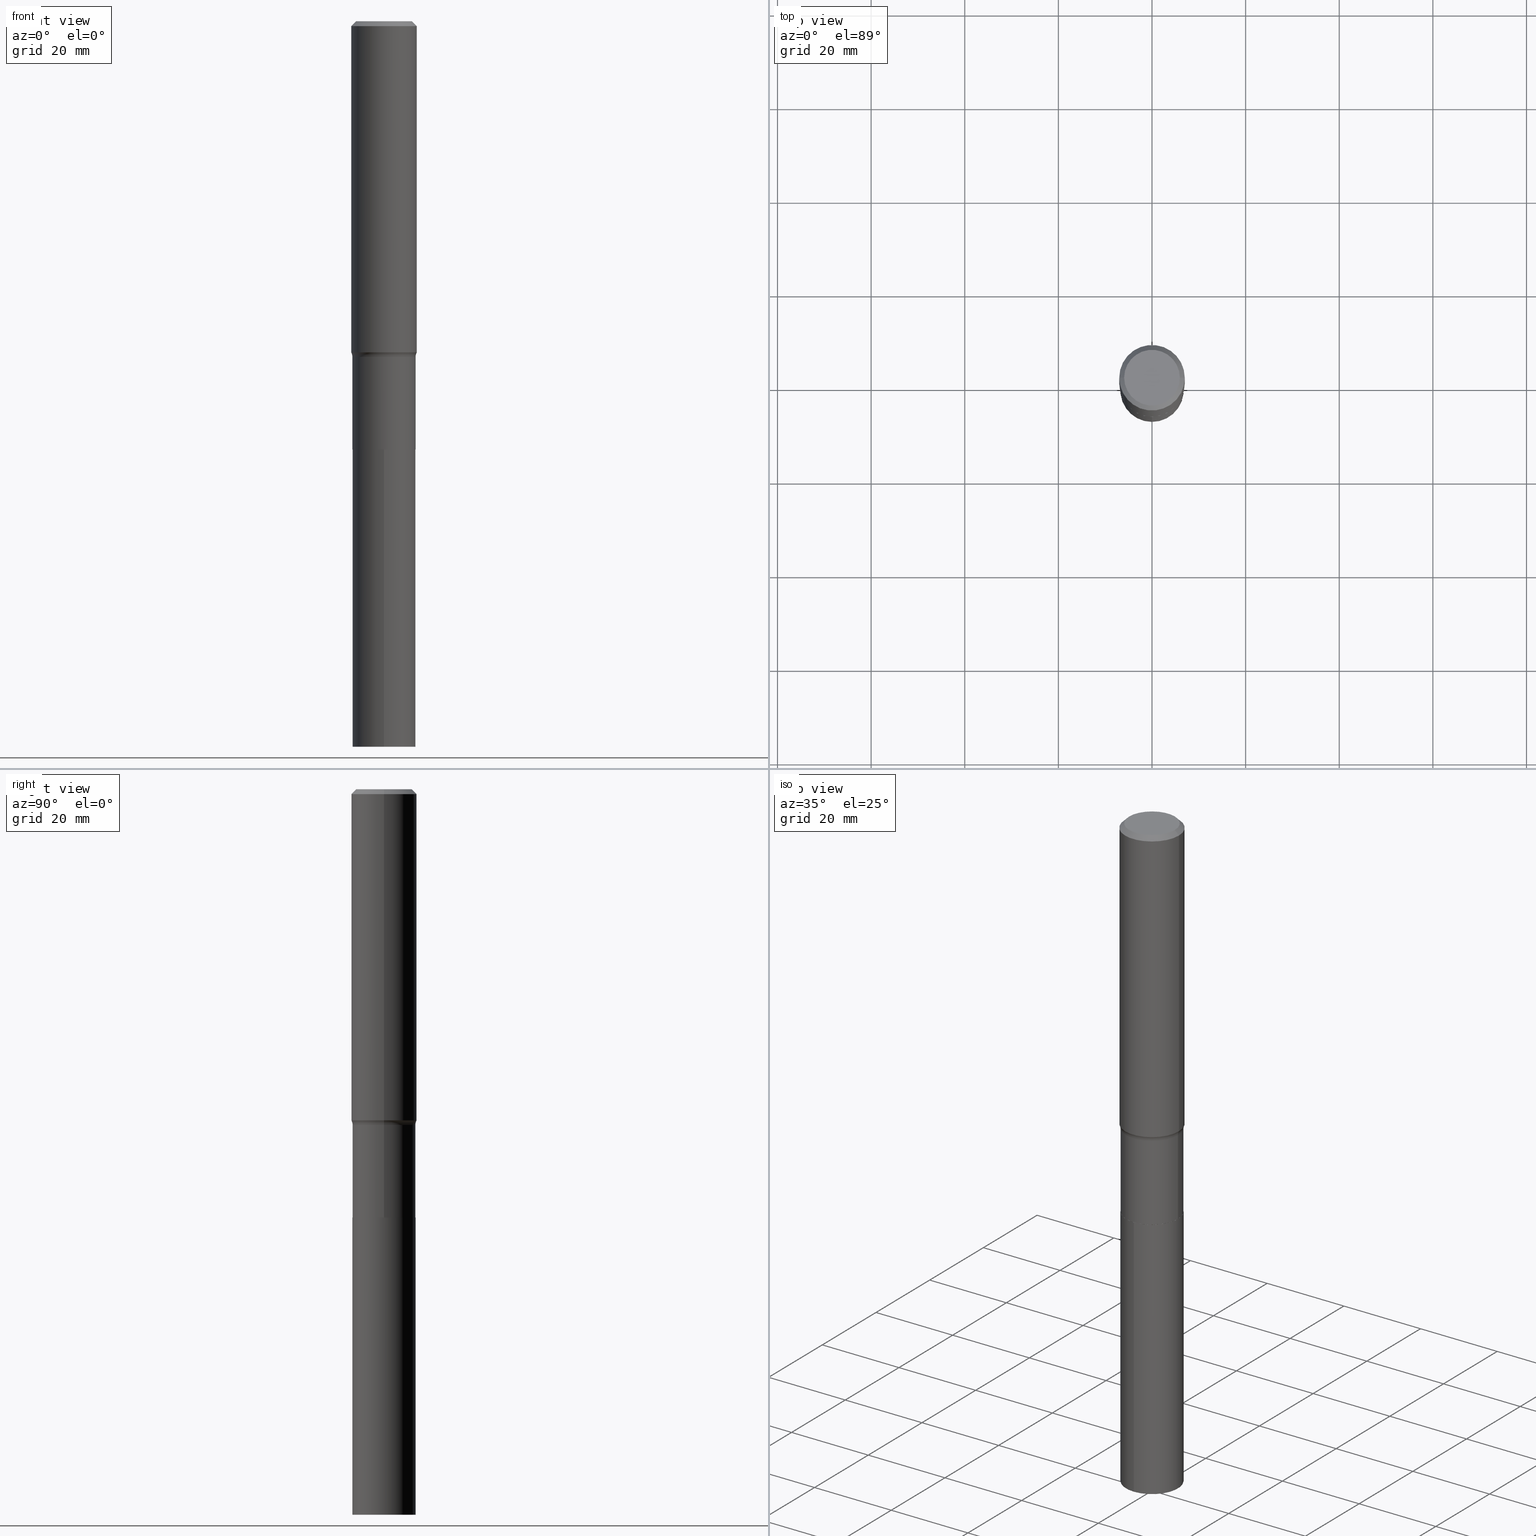
[diagram: canonical four-view strip — front | top / right | iso, engineering-drawing reading convention]
A machine part, canonical four-view strip (front | top / right | iso — engineering-drawing reading convention). The complete STEP part file that produces these views, byte-faithful:
ISO-10303-21;
HEADER;
FILE_DESCRIPTION (( 'STEP AP203' ),
    '1' );
FILE_NAME ('67912.STEP',
    '2024-04-19T17:03:45',
    ( '' ),
    ( '' ),
    'SwSTEP 2.0',
    'SolidWorks 2023',
    '' );
FILE_SCHEMA (( 'CONFIG_CONTROL_DESIGN' ));
ENDSEC;

DATA;
#1 = CARTESIAN_POINT ( 'NONE',  ( 6.905270268024969154E-29, -9.858895856491388163E-15, -2.823699999999999655 ) ) ;
#2 = ADVANCED_FACE ( 'NONE', ( #364 ), #408, .F. ) ;
#3 = DIRECTION ( 'NONE',  ( -2.445202752082162173E-29, 3.491862343461463945E-15, 1.000000000000000000 ) ) ;
#4 = DIRECTION ( 'NONE',  ( 1.000000000000000000, -6.982962677686266711E-15, 0.000000000000000000 ) ) ;
#5 = APPROVAL ( #10, 'UNSPECIFIED' ) ;
#6 = AXIS2_PLACEMENT_3D ( 'NONE', #388, #215, #426 ) ;
#7 = LOCAL_TIME ( 13, 3, 45.00000000000000000, #223 ) ;
#8 = LENGTH_MEASURE_WITH_UNIT ( LENGTH_MEASURE( 0.02539999999999999897 ), #335 );
#9 = ORIENTED_EDGE ( 'NONE', *, *, #432, .T. ) ;
#10 = APPROVAL_STATUS ( 'not_yet_approved' ) ;
#11 = DIRECTION ( 'NONE',  ( 0.000000000000000000, 0.000000000000000000, 1.000000000000000000 ) ) ;
#12 = CARTESIAN_POINT ( 'NONE',  ( 8.809556827401336523E-29, -1.257771237504854747E-14, -3.602399999999999824 ) ) ;
#13 = ORIENTED_EDGE ( 'NONE', *, *, #405, .F. ) ;
#14 = DIRECTION ( 'NONE',  ( -1.000000000000000000, 6.982962677686265922E-15, -4.876176775795935793E-29 ) ) ;
#15 = PERSON_AND_ORGANIZATION ( #316, #463 ) ;
#16 = DIRECTION ( 'NONE',  ( 2.445468806185136597E-29, -3.491481338843145583E-15, -1.000000000000000000 ) ) ;
#17 = VERTEX_POINT ( 'NONE', #302 ) ;
#18 = APPROVAL_STATUS ( 'not_yet_approved' ) ;
#19 = CARTESIAN_POINT ( 'NONE',  ( 8.809556827401336523E-29, -1.257771237504854747E-14, -3.602399999999999824 ) ) ;
#20 = ORIENTED_EDGE ( 'NONE', *, *, #181, .F. ) ;
#21 = CARTESIAN_POINT ( 'NONE',  ( 8.809556827401336523E-29, -1.257771237504854747E-14, -3.602399999999999824 ) ) ;
#22 = CIRCLE ( 'NONE', #47, 0.2756000000000004002 ) ;
#23 = CARTESIAN_POINT ( 'NONE',  ( -0.2756000000000001782, 1.958255779754837378E-15, -1.355658510874252848E-29 ) ) ;
#24 = FACE_OUTER_BOUND ( 'NONE', #33, .T. ) ;
#25 = ORIENTED_EDGE ( 'NONE', *, *, #264, .F. ) ;
#26 = PERSON_AND_ORGANIZATION_ROLE ( 'creator' ) ;
#27 = FACE_OUTER_BOUND ( 'NONE', #159, .T. ) ;
#28 = ORIENTED_EDGE ( 'NONE', *, *, #184, .F. ) ;
#29 = CARTESIAN_POINT ( 'NONE',  ( 0.3457499999999998352, -1.227325520230141358E-14, -2.823699999999999655 ) ) ;
#30 = APPROVAL ( #376, 'UNSPECIFIED' ) ;
#31 = TOROIDAL_SURFACE ( 'NONE', #150, 0.3457499999999998352, 0.07999999999999998779 ) ;
#32 = CARTESIAN_POINT ( 'NONE',  ( -0.2756000000000000116, -2.976224286966953364E-15, -0.04134000000000025848 ) ) ;
#33 = EDGE_LOOP ( 'NONE', ( #422, #300, #210, #153 ) ) ;
#34 = ADVANCED_FACE ( 'NONE', ( #296 ), #229, .T. ) ;
#35 = DIRECTION ( 'NONE',  ( 1.000000000000000000, -6.982962677686265133E-15, 4.876176775795935232E-29 ) ) ;
#36 = DIRECTION ( 'NONE',  ( -2.445468806185136597E-29, 3.491481338843145583E-15, 1.000000000000000000 ) ) ;
#37 = ORIENTED_EDGE ( 'NONE', *, *, #152, .F. ) ;
#38 = CARTESIAN_POINT ( 'NONE',  ( -0.2756000000000000116, 1.780166675422558965E-15, -0.04134000000000025848 ) ) ;
#39 = AXIS2_PLACEMENT_3D ( 'NONE', #204, #352, #345 ) ;
#40 = DIRECTION ( 'NONE',  ( -2.445468806185136597E-29, 3.491481338843145583E-15, 1.000000000000000000 ) ) ;
#41 = EDGE_CURVE ( 'NONE', #319, #88, #375, .T. ) ;
#42 = ORIENTED_EDGE ( 'NONE', *, *, #74, .T. ) ;
#43 = ORIENTED_EDGE ( 'NONE', *, *, #41, .T. ) ;
#44 =( CONVERSION_BASED_UNIT ( 'INCH', #8 ) LENGTH_UNIT ( ) NAMED_UNIT ( #346 ) );
#45 = FACE_OUTER_BOUND ( 'NONE', #387, .T. ) ;
#46 = CARTESIAN_POINT ( 'NONE',  ( -5.014852121625167883E-47, 7.159879756154482429E-33, 2.050671065172242981E-18 ) ) ;
#47 = AXIS2_PLACEMENT_3D ( 'NONE', #266, #290, #136 ) ;
#48 = PRODUCT_DEFINITION_FORMATION_WITH_SPECIFIED_SOURCE ( 'ANY', '', #425, .NOT_KNOWN. ) ;
#49 = ADVANCED_FACE ( 'NONE', ( #299 ), #269, .T. ) ;
#50 = COORDINATED_UNIVERSAL_TIME_OFFSET ( 5, 0, .BEHIND. ) ;
#51 = DIRECTION ( 'NONE',  ( -6.982962677686266711E-15, -1.000000000000000000, 4.111906669673397387E-15 ) ) ;
#52 = FACE_OUTER_BOUND ( 'NONE', #332, .T. ) ;
#53 = COORDINATED_UNIVERSAL_TIME_OFFSET ( 5, 0, .BEHIND. ) ;
#54 = DIRECTION ( 'NONE',  ( -6.982962677686266711E-15, -1.000000000000000000, 4.111906669673397387E-15 ) ) ;
#55 = CARTESIAN_POINT ( 'NONE',  ( 1.888267320282615635E-15, 0.2657499999999874407, -3.602400000000000713 ) ) ;
#56 = EDGE_LOOP ( 'NONE', ( #313, #192, #456, #126 ) ) ;
#57 = PERSON_AND_ORGANIZATION ( #316, #463 ) ;
#58 = CYLINDRICAL_SURFACE ( 'NONE', #361, 0.2657499999999999862 ) ;
#59 = EDGE_LOOP ( 'NONE', ( #20, #102, #310, #134 ) ) ;
#60 = EDGE_CURVE ( 'NONE', #439, #358, #217, .T. ) ;
#61 = ORIENTED_EDGE ( 'NONE', *, *, #222, .T. ) ;
#62 = CARTESIAN_POINT ( 'NONE',  ( 1.010956804476941872E-30, -1.443378385477765316E-16, -0.04134000000000025848 ) ) ;
#63 = ORIENTED_EDGE ( 'NONE', *, *, #260, .F. ) ;
#64 = CIRCLE ( 'NONE', #190, 0.07999999999999996003 ) ;
#65 = CIRCLE ( 'NONE', #77, 0.2657499999999999862 ) ;
#66 = VECTOR ( 'NONE', #379, 39.37007874015748143 ) ;
#67 = ORIENTED_EDGE ( 'NONE', *, *, #41, .F. ) ;
#68 = LOCAL_TIME ( 13, 3, 45.00000000000000000, #53 ) ;
#69 = DIRECTION ( 'NONE',  ( 1.000000000000000000, -6.982962677686267499E-15, 4.876157962347795834E-29 ) ) ;
#70 = ADVANCED_FACE ( 'NONE', ( #236 ), #31, .F. ) ;
#71 = CC_DESIGN_PERSON_AND_ORGANIZATION_ASSIGNMENT ( #166, #309, ( #48 ) ) ;
#72 = DIRECTION ( 'NONE',  ( 1.000000000000000000, -6.982962677686265133E-15, 4.876176775795935232E-29 ) ) ;
#73 = DIRECTION ( 'NONE',  ( 1.000000000000000000, -6.982962677686262766E-15, 0.000000000000000000 ) ) ;
#74 = EDGE_CURVE ( 'NONE', #444, #88, #297, .T. ) ;
#75 = CIRCLE ( 'NONE', #295, 0.2657499999999999862 ) ;
#76 = PERSON_AND_ORGANIZATION ( #316, #463 ) ;
#77 = AXIS2_PLACEMENT_3D ( 'NONE', #12, #199, #87 ) ;
#78 = EDGE_CURVE ( 'NONE', #358, #88, #168, .T. ) ;
#79 = CARTESIAN_POINT ( 'NONE',  ( 0.2657499999999999862, -1.855722331595124952E-15, 1.295843978167769732E-29 ) ) ;
#80 = MANIFOLD_SOLID_BREP ( 'Body-Move/Copy2[2]', #116 ) ;
#81 = AXIS2_PLACEMENT_3D ( 'NONE', #209, #175, #457 ) ;
#82 =( GEOMETRIC_REPRESENTATION_CONTEXT ( 3 ) GLOBAL_UNCERTAINTY_ASSIGNED_CONTEXT ( ( #148 ) ) GLOBAL_UNIT_ASSIGNED_CONTEXT ( ( #44, #232, #154 ) ) REPRESENTATION_CONTEXT ( 'NONE', 'WORKASPACE' ) );
#83 = PRODUCT_DEFINITION ( 'UNKNOWN', '', #48, #357 ) ;
#84 = ORIENTED_EDGE ( 'NONE', *, *, #152, .T. ) ;
#85 = PERSON_AND_ORGANIZATION ( #316, #463 ) ;
#86 = ORIENTED_EDGE ( 'NONE', *, *, #464, .T. ) ;
#87 = DIRECTION ( 'NONE',  ( -6.982962677686266711E-15, -1.000000000000000000, 4.111906669673397387E-15 ) ) ;
#88 = VERTEX_POINT ( 'NONE', #139 ) ;
#89 = CARTESIAN_POINT ( 'NONE',  ( 0.2652499999999999858, -1.442994322530482981E-14, -3.602399999999999824 ) ) ;
#90 = VERTEX_POINT ( 'NONE', #392 ) ;
#91 = DATE_AND_TIME ( #281, #68 ) ;
#92 = DIRECTION ( 'NONE',  ( -2.445468806185136597E-29, 3.491481338843145583E-15, 1.000000000000000000 ) ) ;
#93 = ADVANCED_FACE ( 'NONE', ( #169 ), #130, .T. ) ;
#94 = ORIENTED_EDGE ( 'NONE', *, *, #105, .T. ) ;
#95 = DIRECTION ( 'NONE',  ( -6.982962677686265922E-15, -1.000000000000000000, 3.491862343461464340E-15 ) ) ;
#96 = CIRCLE ( 'NONE', #39, 0.2756000000000000116 ) ;
#97 = ORIENTED_EDGE ( 'NONE', *, *, #260, .T. ) ;
#98 = SHAPE_DEFINITION_REPRESENTATION ( #142, #420 ) ;
#99 = CARTESIAN_POINT ( 'NONE',  ( -1.855722331595036994E-15, -0.2657500000000125318, -3.602399999999998492 ) ) ;
#100 = ORIENTED_EDGE ( 'NONE', *, *, #60, .T. ) ;
#101 = CARTESIAN_POINT ( 'NONE',  ( 8.808334092998241479E-29, -1.257596663437912518E-14, -3.601899999999999658 ) ) ;
#102 = ORIENTED_EDGE ( 'NONE', *, *, #197, .T. ) ;
#103 = ORIENTED_EDGE ( 'NONE', *, *, #228, .T. ) ;
#104 = DIRECTION ( 'NONE',  ( -2.445202752082161893E-29, 3.491862343461464340E-15, 1.000000000000000000 ) ) ;
#105 = EDGE_CURVE ( 'NONE', #358, #439, #288, .T. ) ;
#106 = EDGE_LOOP ( 'NONE', ( #441, #161, #176, #322 ) ) ;
#107 = EDGE_LOOP ( 'NONE', ( #267, #97, #84, #406 ) ) ;
#108 = FACE_OUTER_BOUND ( 'NONE', #380, .T. ) ;
#109 = LINE ( 'NONE', #396, #314 ) ;
#110 = AXIS2_PLACEMENT_3D ( 'NONE', #362, #36, #69 ) ;
#111 = LOCAL_TIME ( 13, 3, 45.00000000000000000, #344 ) ;
#112 = DIRECTION ( 'NONE',  ( 1.000000000000000000, -6.982962677686267499E-15, 0.000000000000000000 ) ) ;
#113 = DIRECTION ( 'NONE',  ( 0.7071067811865452413, -7.319954787623248157E-15, -0.7071067811865497932 ) ) ;
#114 = VERTEX_POINT ( 'NONE', #89 ) ;
#115 = ORIENTED_EDGE ( 'NONE', *, *, #363, .T. ) ;
#116 = CLOSED_SHELL ( 'NONE', ( #93, #194, #293, #2, #436, #49, #70, #34, #368, #461, #273, #446 ) ) ;
#117 = DIRECTION ( 'NONE',  ( 1.000000000000000000, -6.982962677686265922E-15, 4.883557194083112340E-29 ) ) ;
#118 = LOCAL_TIME ( 13, 3, 45.00000000000000000, #50 ) ;
#119 = DIRECTION ( 'NONE',  ( -2.445468806185136597E-29, 3.491481338843145583E-15, 1.000000000000000000 ) ) ;
#120 = EDGE_LOOP ( 'NONE', ( #213, #424, #287, #164 ) ) ;
#121 = MECHANICAL_CONTEXT ( 'NONE', #147, 'mechanical' ) ;
#122 = DIRECTION ( 'NONE',  ( 1.000000000000000000, -6.982962677686265922E-15, 4.883557194083112340E-29 ) ) ;
#123 = VECTOR ( 'NONE', #104, 39.37007874015748143 ) ;
#124 = EDGE_CURVE ( 'NONE', #114, #305, #200, .T. ) ;
#125 = CARTESIAN_POINT ( 'NONE',  ( 8.809556827401336523E-29, -1.257771237504854747E-14, -3.602399999999999824 ) ) ;
#126 = ORIENTED_EDGE ( 'NONE', *, *, #363, .F. ) ;
#127 = CALENDAR_DATE ( 2024, 19, 4 ) ;
#128 = DIRECTION ( 'NONE',  ( -2.445202752082162173E-29, 3.491862343461463945E-15, 1.000000000000000000 ) ) ;
#129 = AXIS2_PLACEMENT_3D ( 'NONE', #417, #131, #95 ) ;
#130 = CONICAL_SURFACE ( 'NONE', #418, 0.2652499999999999858, 0.7853981633973118326 ) ;
#131 = DIRECTION ( 'NONE',  ( -2.445202752082161613E-29, 3.491862343461464340E-15, 1.000000000000000000 ) ) ;
#132 = VERTEX_POINT ( 'NONE', #55 ) ;
#133 = ORIENTED_EDGE ( 'NONE', *, *, #373, .F. ) ;
#134 = ORIENTED_EDGE ( 'NONE', *, *, #105, .F. ) ;
#135 = APPROVAL_ROLE ( '' ) ;
#136 = DIRECTION ( 'NONE',  ( 1.000000000000000000, -6.982962677686270655E-15, 0.000000000000000000 ) ) ;
#137 = APPROVAL_ROLE ( '' ) ;
#138 = ORIENTED_EDGE ( 'NONE', *, *, #124, .F. ) ;
#139 = CARTESIAN_POINT ( 'NONE',  ( -0.2657499999999998752, -9.329163925152790920E-15, -2.823699999999999655 ) ) ;
#140 = PERSON_AND_ORGANIZATION ( #316, #463 ) ;
#141 = DIRECTION ( 'NONE',  ( 2.445468806185136597E-29, -3.491481338843145583E-15, -1.000000000000000000 ) ) ;
#142 = PRODUCT_DEFINITION_SHAPE ( 'NONE', 'NONE',  #83 ) ;
#143 = VECTOR ( 'NONE', #458, 39.37007874015748143 ) ;
#144 = CONICAL_SURFACE ( 'NONE', #385, 0.2756000000000000116, 0.7853981633974450594 ) ;
#145 = DIRECTION ( 'NONE',  ( -2.445468806185136877E-29, 3.491481338843145188E-15, 1.000000000000000000 ) ) ;
#146 = DIRECTION ( 'NONE',  ( -2.445202752082162173E-29, 3.491862343461463945E-15, 1.000000000000000000 ) ) ;
#147 = APPLICATION_CONTEXT ( 'configuration controlled 3d designs of mechanical parts and assemblies' ) ;
#148 = UNCERTAINTY_MEASURE_WITH_UNIT (LENGTH_MEASURE( 1.000000000000000082E-05 ), #44, 'distance_accuracy_value', 'NONE');
#149 = DIRECTION ( 'NONE',  ( -6.982962677686266711E-15, -1.000000000000000000, 4.111906669673397387E-15 ) ) ;
#150 = AXIS2_PLACEMENT_3D ( 'NONE', #304, #443, #122 ) ;
#151 = DIRECTION ( 'NONE',  ( -1.000000000000000000, 7.105427357601001859E-15, 0.000000000000000000 ) ) ;
#152 = EDGE_CURVE ( 'NONE', #451, #355, #450, .T. ) ;
#153 = ORIENTED_EDGE ( 'NONE', *, *, #464, .F. ) ;
#154 =( NAMED_UNIT ( * ) SI_UNIT ( $, .STERADIAN. ) SOLID_ANGLE_UNIT ( ) );
#155 = DIRECTION ( 'NONE',  ( 1.000000000000000000, 0.000000000000000000, 0.000000000000000000 ) ) ;
#156 = CARTESIAN_POINT ( 'NONE',  ( -0.3457499999999998352, -7.402194347600843335E-15, -2.823699999999999655 ) ) ;
#157 = ORIENTED_EDGE ( 'NONE', *, *, #389, .T. ) ;
#158 = DIRECTION ( 'NONE',  ( 7.105427357601001859E-15, 1.000000000000000000, -3.491481338843145583E-15 ) ) ;
#159 = EDGE_LOOP ( 'NONE', ( #280, #13, #86, #157 ) ) ;
#160 = AXIS2_PLACEMENT_3D ( 'NONE', #272, #119, #72 ) ;
#161 = ORIENTED_EDGE ( 'NONE', *, *, #181, .T. ) ;
#162 = CIRCLE ( 'NONE', #219, 0.2657499999999999862 ) ;
#163 = DIRECTION ( 'NONE',  ( -2.445468806185136597E-29, 3.491481338843145583E-15, 1.000000000000000000 ) ) ;
#164 = ORIENTED_EDGE ( 'NONE', *, *, #189, .F. ) ;
#165 = DIRECTION ( 'NONE',  ( -0.7071067811865452413, 2.468850131082233000E-15, -0.7071067811865497932 ) ) ;
#166 = PERSON_AND_ORGANIZATION ( #316, #463 ) ;
#167 = CC_DESIGN_PERSON_AND_ORGANIZATION_ASSIGNMENT ( #15, #26, ( #48 ) ) ;
#168 = LINE ( 'NONE', #311, #403 ) ;
#169 = FACE_OUTER_BOUND ( 'NONE', #106, .T. ) ;
#170 = DIRECTION ( 'NONE',  ( 1.000000000000000000, -6.982962677686265922E-15, 4.876176775795935793E-29 ) ) ;
#171 = CC_DESIGN_SECURITY_CLASSIFICATION ( #186, ( #48 ) ) ;
#172 = ADVANCED_FACE ( 'NONE', ( #52 ), #354, .F. ) ;
#173 = CALENDAR_DATE ( 2024, 19, 4 ) ;
#174 = DIRECTION ( 'NONE',  ( 1.000000000000000000, -6.982962677686267499E-15, 4.876176775795935793E-29 ) ) ;
#175 = DIRECTION ( 'NONE',  ( -2.445468806185136597E-29, 3.491481338843145583E-15, 1.000000000000000000 ) ) ;
#176 = ORIENTED_EDGE ( 'NONE', *, *, #60, .F. ) ;
#177 = CARTESIAN_POINT ( 'NONE',  ( 1.010956804476941872E-30, -1.443378385477765316E-16, -0.04134000000000025848 ) ) ;
#178 = DIRECTION ( 'NONE',  ( 1.000000000000000000, -6.982962677686265922E-15, 0.000000000000000000 ) ) ;
#179 = ORIENTED_EDGE ( 'NONE', *, *, #78, .F. ) ;
#180 = CIRCLE ( 'NONE', #421, 0.2342600000000000238 ) ;
#181 = EDGE_CURVE ( 'NONE', #305, #358, #205, .T. ) ;
#182 = EDGE_LOOP ( 'NONE', ( #138, #351 ) ) ;
#183 = FACE_OUTER_BOUND ( 'NONE', #59, .T. ) ;
#184 = EDGE_CURVE ( 'NONE', #451, #319, #64, .T. ) ;
#185 = CIRCLE ( 'NONE', #81, 0.2657499999999998752 ) ;
#186 = SECURITY_CLASSIFICATION ( '', '', #448 ) ;
#187 = DIRECTION ( 'NONE',  ( 6.982962677686265922E-15, 1.000000000000000000, -3.491862343461464340E-15 ) ) ;
#188 = FACE_OUTER_BOUND ( 'NONE', #218, .T. ) ;
#189 = EDGE_CURVE ( 'NONE', #283, #263, #246, .T. ) ;
#190 = AXIS2_PLACEMENT_3D ( 'NONE', #29, #326, #460 ) ;
#191 = AXIS2_PLACEMENT_3D ( 'NONE', #46, #401, #14 ) ;
#192 = ORIENTED_EDGE ( 'NONE', *, *, #264, .T. ) ;
#193 = CC_DESIGN_APPROVAL ( #5, ( #83 ) ) ;
#194 = ADVANCED_FACE ( 'NONE', ( #24 ), #324, .T. ) ;
#195 = CARTESIAN_POINT ( 'NONE',  ( 0.000000000000000000, 0.000000000000000000, 0.000000000000000000 ) ) ;
#196 = EDGE_LOOP ( 'NONE', ( #100, #250, #67, #390 ) ) ;
#197 = EDGE_CURVE ( 'NONE', #305, #114, #207, .T. ) ;
#198 = DATE_TIME_ROLE ( 'creation_date' ) ;
#199 = DIRECTION ( 'NONE',  ( -2.445202752082162173E-29, 3.491862343461463945E-15, 1.000000000000000000 ) ) ;
#200 = CIRCLE ( 'NONE', #6, 0.2652499999999999858 ) ;
#201 = CIRCLE ( 'NONE', #371, 0.2756000000000000116 ) ;
#202 = DATE_AND_TIME ( #173, #118 ) ;
#203 = PERSON_AND_ORGANIZATION_ROLE ( 'creator' ) ;
#204 = CARTESIAN_POINT ( 'NONE',  ( 1.010956804476941872E-30, -1.443378385477765316E-16, -0.04134000000000025848 ) ) ;
#205 = LINE ( 'NONE', #255, #66 ) ;
#206 = LINE ( 'NONE', #79, #445 ) ;
#207 = CIRCLE ( 'NONE', #242, 0.2652499999999999858 ) ;
#208 = AXIS2_PLACEMENT_3D ( 'NONE', #254, #391, #327 ) ;
#209 = CARTESIAN_POINT ( 'NONE',  ( 6.905270268024969154E-29, -9.858895856491388163E-15, -2.823699999999999655 ) ) ;
#210 = ORIENTED_EDGE ( 'NONE', *, *, #338, .T. ) ;
#211 = COORDINATED_UNIVERSAL_TIME_OFFSET ( 5, 0, .BEHIND. ) ;
#212 = DIRECTION ( 'NONE',  ( -2.445202752082162173E-29, 3.491862343461463945E-15, 1.000000000000000000 ) ) ;
#213 = ORIENTED_EDGE ( 'NONE', *, *, #449, .T. ) ;
#214 = ORIENTED_EDGE ( 'NONE', *, *, #338, .F. ) ;
#215 = DIRECTION ( 'NONE',  ( -2.445468806185136597E-29, 3.491481338843145583E-15, 1.000000000000000000 ) ) ;
#216 = EDGE_LOOP ( 'NONE', ( #63, #42, #61, #28 ) ) ;
#217 = CIRCLE ( 'NONE', #348, 0.2657500000000000417 ) ;
#218 = EDGE_LOOP ( 'NONE', ( #9, #115 ) ) ;
#219 = AXIS2_PLACEMENT_3D ( 'NONE', #291, #146, #149 ) ;
#220 = APPROVAL ( #18, 'UNSPECIFIED' ) ;
#221 = CARTESIAN_POINT ( 'NONE',  ( 8.809556827401336523E-29, -1.257771237504854747E-14, -3.602399999999999824 ) ) ;
#222 = EDGE_CURVE ( 'NONE', #88, #319, #185, .T. ) ;
#223 = COORDINATED_UNIVERSAL_TIME_OFFSET ( 5, 0, .BEHIND. ) ;
#224 = EDGE_CURVE ( 'NONE', #17, #355, #109, .T. ) ;
#225 = AXIS2_PLACEMENT_3D ( 'NONE', #156, #158, #151 ) ;
#226 = AXIS2_PLACEMENT_3D ( 'NONE', #227, #294, #35 ) ;
#227 = CARTESIAN_POINT ( 'NONE',  ( 0.000000000000000000, 0.000000000000000000, 0.000000000000000000 ) ) ;
#228 = EDGE_CURVE ( 'NONE', #17, #256, #306, .T. ) ;
#229 = CYLINDRICAL_SURFACE ( 'NONE', #330, 0.2756000000000001782 ) ;
#230 = CARTESIAN_POINT ( 'NONE',  ( 0.2657500000000000417, -1.443168896597424895E-14, -3.601899999999999658 ) ) ;
#231 = CARTESIAN_POINT ( 'NONE',  ( 8.808334092998241479E-29, -1.257596663437912518E-14, -3.601899999999999658 ) ) ;
#232 =( NAMED_UNIT ( * ) PLANE_ANGLE_UNIT ( ) SI_UNIT ( $, .RADIAN. ) );
#233 = VECTOR ( 'NONE', #244, 39.37007874015748143 ) ;
#234 = PRODUCT_RELATED_PRODUCT_CATEGORY ( 'detail', '', ( #425 ) ) ;
#235 = VECTOR ( 'NONE', #279, 39.37007874015748143 ) ;
#236 = FACE_OUTER_BOUND ( 'NONE', #285, .T. ) ;
#237 = PERSON_AND_ORGANIZATION_ROLE ( 'design_owner' ) ;
#238 = DIRECTION ( 'NONE',  ( -2.445468806185136597E-29, 3.491481338843145583E-15, 1.000000000000000000 ) ) ;
#239 = ADVANCED_FACE ( 'NONE', ( #188 ), #334, .F. ) ;
#240 = DATE_AND_TIME ( #374, #271 ) ;
#241 = DIRECTION ( 'NONE',  ( 1.000000000000000000, -6.982962677686270655E-15, 0.000000000000000000 ) ) ;
#242 = AXIS2_PLACEMENT_3D ( 'NONE', #21, #383, #317 ) ;
#243 = CARTESIAN_POINT ( 'NONE',  ( 0.000000000000000000, 0.000000000000000000, 0.000000000000000000 ) ) ;
#244 = DIRECTION ( 'NONE',  ( -2.445468806185136877E-29, 3.491481338843145188E-15, 1.000000000000000000 ) ) ;
#245 = LINE ( 'NONE', #282, #143 ) ;
#246 = LINE ( 'NONE', #318, #123 ) ;
#247 = ORIENTED_EDGE ( 'NONE', *, *, #303, .T. ) ;
#248 = APPROVAL_DATE_TIME ( #91, #220 ) ;
#249 = DIRECTION ( 'NONE',  ( -2.445468806185136877E-29, 3.491481338843145188E-15, 1.000000000000000000 ) ) ;
#250 = ORIENTED_EDGE ( 'NONE', *, *, #78, .T. ) ;
#251 = AXIS2_PLACEMENT_3D ( 'NONE', #243, #92, #174 ) ;
#252 = DIRECTION ( 'NONE',  ( -2.438088387897960049E-29, 3.491481338843145188E-15, 1.000000000000000000 ) ) ;
#253 = DIRECTION ( 'NONE',  ( -2.445468806185136597E-29, 3.491481338843145583E-15, 1.000000000000000000 ) ) ;
#254 = CARTESIAN_POINT ( 'NONE',  ( 8.809556827401336523E-29, -1.257771237504854747E-14, -3.602399999999999824 ) ) ;
#255 = CARTESIAN_POINT ( 'NONE',  ( -0.2652499999999999858, -1.069299776844488341E-14, -3.602399999999999824 ) ) ;
#256 = VERTEX_POINT ( 'NONE', #465 ) ;
#257 = MANIFOLD_SOLID_BREP ( 'Body-Move/Copy2[1]', #265 ) ;
#258 = FACE_OUTER_BOUND ( 'NONE', #196, .T. ) ;
#259 = APPROVAL_PERSON_ORGANIZATION ( #85, #220, #411 ) ;
#260 = EDGE_CURVE ( 'NONE', #444, #451, #22, .T. ) ;
#261 = CARTESIAN_POINT ( 'NONE',  ( -1.002970424325033577E-46, 1.431975951230896486E-32, 4.101342130344485961E-18 ) ) ;
#262 = CARTESIAN_POINT ( 'NONE',  ( 1.492256370760674490E-28, -2.130736823370221108E-14, -6.102400000000001157 ) ) ;
#263 = VERTEX_POINT ( 'NONE', #99 ) ;
#264 = EDGE_CURVE ( 'NONE', #90, #283, #75, .T. ) ;
#265 = CLOSED_SHELL ( 'NONE', ( #323, #172, #423, #239 ) ) ;
#266 = CARTESIAN_POINT ( 'NONE',  ( 6.811223708839815115E-29, -9.724622294895805890E-15, -2.785242523483721477 ) ) ;
#267 = ORIENTED_EDGE ( 'NONE', *, *, #303, .F. ) ;
#268 = EDGE_CURVE ( 'NONE', #114, #439, #245, .T. ) ;
#269 = CYLINDRICAL_SURFACE ( 'NONE', #160, 0.2657499999999999862 ) ;
#270 = AXIS2_PLACEMENT_3D ( 'NONE', #125, #252, #170 ) ;
#271 = LOCAL_TIME ( 13, 3, 45.00000000000000000, #211 ) ;
#272 = CARTESIAN_POINT ( 'NONE',  ( 0.000000000000000000, 0.000000000000000000, 0.000000000000000000 ) ) ;
#273 = ADVANCED_FACE ( 'NONE', ( #419 ), #275, .F. ) ;
#274 = DATE_AND_TIME ( #127, #111 ) ;
#275 = PLANE ( 'NONE',  #270 ) ;
#276 = APPLICATION_CONTEXT ( 'configuration controlled 3d designs of mechanical parts and assemblies' ) ;
#277 = ORIENTED_EDGE ( 'NONE', *, *, #320, .T. ) ;
#278 = APPROVAL_DATE_TIME ( #365, #5 ) ;
#279 = DIRECTION ( 'NONE',  ( -2.445202752082161893E-29, 3.491862343461464340E-15, 1.000000000000000000 ) ) ;
#280 = ORIENTED_EDGE ( 'NONE', *, *, #224, .F. ) ;
#281 = CALENDAR_DATE ( 2024, 19, 4 ) ;
#282 = CARTESIAN_POINT ( 'NONE',  ( 0.2652499999999999858, -1.442994322530482981E-14, -3.602399999999999824 ) ) ;
#283 = VERTEX_POINT ( 'NONE', #407 ) ;
#284 = CARTESIAN_POINT ( 'NONE',  ( 8.809556827401336523E-29, -1.257771237504854747E-14, -3.602399999999999824 ) ) ;
#285 = EDGE_LOOP ( 'NONE', ( #328, #133, #416, #43 ) ) ;
#286 = DIRECTION ( 'NONE',  ( -1.000000000000000000, 6.982962677686267499E-15, 0.000000000000000000 ) ) ;
#287 = ORIENTED_EDGE ( 'NONE', *, *, #432, .F. ) ;
#288 = CIRCLE ( 'NONE', #336, 0.2657500000000000417 ) ;
#289 = VECTOR ( 'NONE', #165, 39.37007874015748143 ) ;
#290 = DIRECTION ( 'NONE',  ( -2.445468806185136597E-29, 3.491481338843145583E-15, 1.000000000000000000 ) ) ;
#291 = CARTESIAN_POINT ( 'NONE',  ( 8.809556827401336523E-29, -1.257771237504854747E-14, -3.602399999999999824 ) ) ;
#292 = CARTESIAN_POINT ( 'NONE',  ( 0.2756000000000004002, -1.164912680886614558E-14, -2.785242523483721477 ) ) ;
#293 = ADVANCED_FACE ( 'NONE', ( #45 ), #410, .T. ) ;
#294 = DIRECTION ( 'NONE',  ( -2.445468806185136597E-29, 3.491481338843145583E-15, 1.000000000000000000 ) ) ;
#295 = AXIS2_PLACEMENT_3D ( 'NONE', #415, #128, #54 ) ;
#296 = FACE_OUTER_BOUND ( 'NONE', #107, .T. ) ;
#297 = CIRCLE ( 'NONE', #225, 0.07999999999999996003 ) ;
#298 = CIRCLE ( 'NONE', #349, 0.2657499999999999862 ) ;
#299 = FACE_OUTER_BOUND ( 'NONE', #386, .T. ) ;
#300 = ORIENTED_EDGE ( 'NONE', *, *, #224, .T. ) ;
#301 = CC_DESIGN_PERSON_AND_ORGANIZATION_ASSIGNMENT ( #414, #381, ( #186 ) ) ;
#302 = CARTESIAN_POINT ( 'NONE',  ( 0.2342600000000000238, -1.821115673845785155E-15, 4.101342130356573868E-18 ) ) ;
#303 = EDGE_CURVE ( 'NONE', #444, #393, #382, .T. ) ;
#304 = CARTESIAN_POINT ( 'NONE',  ( 6.905270268024969154E-29, -9.858895856491388163E-15, -2.823699999999999655 ) ) ;
#305 = VERTEX_POINT ( 'NONE', #321 ) ;
#306 = CIRCLE ( 'NONE', #110, 0.2342600000000000238 ) ;
#307 = CC_DESIGN_APPROVAL ( #30, ( #48 ) ) ;
#308 = CARTESIAN_POINT ( 'NONE',  ( 0.2756000000000000116, -2.068842352518111732E-15, -0.04134000000000025848 ) ) ;
#309 = PERSON_AND_ORGANIZATION_ROLE ( 'design_supplier' ) ;
#310 = ORIENTED_EDGE ( 'NONE', *, *, #268, .T. ) ;
#311 = CARTESIAN_POINT ( 'NONE',  ( -0.2657499999999999862, 1.888267320282466146E-15, -1.307207000235240949E-29 ) ) ;
#312 = DIRECTION ( 'NONE',  ( -2.445468806185136597E-29, 3.491481338843145583E-15, 1.000000000000000000 ) ) ;
#313 = ORIENTED_EDGE ( 'NONE', *, *, #341, .F. ) ;
#314 = VECTOR ( 'NONE', #113, 39.37007874015748143 ) ;
#315 = LINE ( 'NONE', #454, #235 ) ;
#316 = PERSON ( 'UNSPECIFIED', 'UNSPECIFIED', 'UNSPECIFIED', ('UNSPECIFIED'), ('UNSPECIFIED'), ('UNSPECIFIED') ) ;
#317 = DIRECTION ( 'NONE',  ( 1.000000000000000000, -6.982962677686265922E-15, 0.000000000000000000 ) ) ;
#318 = CARTESIAN_POINT ( 'NONE',  ( -1.855722331595036994E-15, -0.2657500000000125318, -3.602399999999998492 ) ) ;
#319 = VERTEX_POINT ( 'NONE', #455 ) ;
#320 = EDGE_CURVE ( 'NONE', #439, #319, #206, .T. ) ;
#321 = CARTESIAN_POINT ( 'NONE',  ( -0.2652499999999999858, -1.069034854127076984E-14, -3.602399999999999824 ) ) ;
#322 = ORIENTED_EDGE ( 'NONE', *, *, #268, .F. ) ;
#323 = ADVANCED_FACE ( 'NONE', ( #384 ), #58, .T. ) ;
#324 = CONICAL_SURFACE ( 'NONE', #462, 0.2756000000000000116, 0.7853981633974450594 ) ;
#325 = APPROVAL_PERSON_ORGANIZATION ( #57, #30, #135 ) ;
#326 = DIRECTION ( 'NONE',  ( -6.982962677686266711E-15, -1.000000000000000000, 3.491481338843145583E-15 ) ) ;
#327 = DIRECTION ( 'NONE',  ( -6.982962677686266711E-15, -1.000000000000000000, 4.111906669673397387E-15 ) ) ;
#328 = ORIENTED_EDGE ( 'NONE', *, *, #74, .F. ) ;
#329 = CYLINDRICAL_SURFACE ( 'NONE', #208, 0.2657499999999999862 ) ;
#330 = AXIS2_PLACEMENT_3D ( 'NONE', #466, #400, #366 ) ;
#331 = CALENDAR_DATE ( 2024, 19, 4 ) ;
#332 = EDGE_LOOP ( 'NONE', ( #353, #25 ) ) ;
#333 = DIRECTION ( 'NONE',  ( -2.445468806185136597E-29, 3.491481338843145583E-15, 1.000000000000000000 ) ) ;
#334 = PLANE ( 'NONE',  #370 ) ;
#335 =( LENGTH_UNIT ( ) NAMED_UNIT ( * ) SI_UNIT ( $, .METRE. ) );
#336 = AXIS2_PLACEMENT_3D ( 'NONE', #101, #253, #413 ) ;
#337 = PLANE ( 'NONE',  #191 ) ;
#338 = EDGE_CURVE ( 'NONE', #355, #393, #96, .T. ) ;
#339 = PERSON_AND_ORGANIZATION ( #316, #463 ) ;
#340 = AXIS2_PLACEMENT_3D ( 'NONE', #1, #238, #117 ) ;
#341 = EDGE_CURVE ( 'NONE', #90, #132, #315, .T. ) ;
#342 = CARTESIAN_POINT ( 'NONE',  ( 6.811223708839815115E-29, -9.724622294895805890E-15, -2.785242523483721477 ) ) ;
#343 = APPROVAL_DATE_TIME ( #202, #30 ) ;
#344 = COORDINATED_UNIVERSAL_TIME_OFFSET ( 5, 0, .BEHIND. ) ;
#345 = DIRECTION ( 'NONE',  ( 1.000000000000000000, -6.982962677686267499E-15, 0.000000000000000000 ) ) ;
#346 = DIMENSIONAL_EXPONENTS ( 1.000000000000000000, 0.000000000000000000, 0.000000000000000000, 0.000000000000000000, 0.000000000000000000, 0.000000000000000000, 0.000000000000000000 ) ;
#347 = DIRECTION ( 'NONE',  ( -1.000000000000000000, 6.982962677686267499E-15, 0.000000000000000000 ) ) ;
#348 = AXIS2_PLACEMENT_3D ( 'NONE', #231, #402, #73 ) ;
#349 = AXIS2_PLACEMENT_3D ( 'NONE', #262, #3, #367 ) ;
#350 = CARTESIAN_POINT ( 'NONE',  ( 0.2756000000000001782, -1.924504513970336532E-15, 1.343874319409360828E-29 ) ) ;
#351 = ORIENTED_EDGE ( 'NONE', *, *, #197, .F. ) ;
#352 = DIRECTION ( 'NONE',  ( -2.445468806185136597E-29, 3.491481338843145583E-15, 1.000000000000000000 ) ) ;
#353 = ORIENTED_EDGE ( 'NONE', *, *, #449, .F. ) ;
#354 = PLANE ( 'NONE',  #129 ) ;
#355 = VERTEX_POINT ( 'NONE', #308 ) ;
#356 = VECTOR ( 'NONE', #249, 39.37007874015748143 ) ;
#357 = DESIGN_CONTEXT ( 'detailed design', #276, 'design' ) ;
#358 = VERTEX_POINT ( 'NONE', #412 ) ;
#359 = DIRECTION ( 'NONE',  ( -2.445468806185136597E-29, 3.491481338843145583E-15, 1.000000000000000000 ) ) ;
#360 = FACE_OUTER_BOUND ( 'NONE', #56, .T. ) ;
#361 = AXIS2_PLACEMENT_3D ( 'NONE', #19, #212, #51 ) ;
#362 = CARTESIAN_POINT ( 'NONE',  ( -1.002970424325033577E-46, 1.431975951230896486E-32, 4.101342130344485961E-18 ) ) ;
#363 = EDGE_CURVE ( 'NONE', #132, #263, #65, .T. ) ;
#364 = FACE_OUTER_BOUND ( 'NONE', #216, .T. ) ;
#365 = DATE_AND_TIME ( #331, #7 ) ;
#366 = DIRECTION ( 'NONE',  ( 1.000000000000000000, -6.982962677686267499E-15, 4.876176775795935793E-29 ) ) ;
#367 = DIRECTION ( 'NONE',  ( -6.982962677686266711E-15, -1.000000000000000000, 4.111906669673397387E-15 ) ) ;
#368 = ADVANCED_FACE ( 'NONE', ( #27 ), #144, .T. ) ;
#369 = LINE ( 'NONE', #38, #289 ) ;
#370 = AXIS2_PLACEMENT_3D ( 'NONE', #221, #397, #187 ) ;
#371 = AXIS2_PLACEMENT_3D ( 'NONE', #431, #428, #112 ) ;
#372 = APPLICATION_PROTOCOL_DEFINITION ( 'international standard', 'config_control_design', 1994, #276 ) ;
#373 = EDGE_CURVE ( 'NONE', #451, #444, #399, .T. ) ;
#374 = CALENDAR_DATE ( 2024, 19, 4 ) ;
#375 = CIRCLE ( 'NONE', #430, 0.2657499999999998752 ) ;
#376 = APPROVAL_STATUS ( 'not_yet_approved' ) ;
#377 = AXIS2_PLACEMENT_3D ( 'NONE', #435, #333, #467 ) ;
#378 = DIRECTION ( 'NONE',  ( -2.445468806185136877E-29, 3.491481338843145188E-15, 1.000000000000000000 ) ) ;
#379 = DIRECTION ( 'NONE',  ( -0.7071067811864509833, 7.493145998870005484E-15, 0.7071067811866440511 ) ) ;
#380 = EDGE_LOOP ( 'NONE', ( #459, #103 ) ) ;
#381 = PERSON_AND_ORGANIZATION_ROLE ( 'classification_officer' ) ;
#382 = LINE ( 'NONE', #23, #356 ) ;
#383 = DIRECTION ( 'NONE',  ( -2.445468806185136597E-29, 3.491481338843145583E-15, 1.000000000000000000 ) ) ;
#384 = FACE_OUTER_BOUND ( 'NONE', #120, .T. ) ;
#385 = AXIS2_PLACEMENT_3D ( 'NONE', #177, #141, #286 ) ;
#386 = EDGE_LOOP ( 'NONE', ( #179, #94, #277, #427 ) ) ;
#387 = EDGE_LOOP ( 'NONE', ( #438, #247, #214, #37 ) ) ;
#388 = CARTESIAN_POINT ( 'NONE',  ( 8.809556827401336523E-29, -1.257771237504854747E-14, -3.602399999999999824 ) ) ;
#389 = EDGE_CURVE ( 'NONE', #393, #355, #201, .T. ) ;
#390 = ORIENTED_EDGE ( 'NONE', *, *, #320, .F. ) ;
#391 = DIRECTION ( 'NONE',  ( -2.445202752082162173E-29, 3.491862343461463945E-15, 1.000000000000000000 ) ) ;
#392 = CARTESIAN_POINT ( 'NONE',  ( 1.888267320282584475E-15, 0.2657499999999786700, -6.102400000000002045 ) ) ;
#393 = VERTEX_POINT ( 'NONE', #32 ) ;
#394 = CC_DESIGN_PERSON_AND_ORGANIZATION_ASSIGNMENT ( #140, #203, ( #83 ) ) ;
#395 = AXIS2_PLACEMENT_3D ( 'NONE', #342, #163, #241 ) ;
#396 = CARTESIAN_POINT ( 'NONE',  ( 0.2756000000000000116, -2.035091086733610886E-15, -0.04134000000000025848 ) ) ;
#397 = DIRECTION ( 'NONE',  ( 2.445202752082161613E-29, -3.491862343461464340E-15, -1.000000000000000000 ) ) ;
#398 = DIRECTION ( 'NONE',  ( 1.000000000000000000, -6.982962677686267499E-15, 4.876157962347795834E-29 ) ) ;
#399 = CIRCLE ( 'NONE', #395, 0.2756000000000004002 ) ;
#400 = DIRECTION ( 'NONE',  ( -2.445468806185136597E-29, 3.491481338843145583E-15, 1.000000000000000000 ) ) ;
#401 = DIRECTION ( 'NONE',  ( 2.438088387897960049E-29, -3.491481338843145188E-15, -1.000000000000000000 ) ) ;
#402 = DIRECTION ( 'NONE',  ( -2.445468806185136597E-29, 3.491481338843145583E-15, 1.000000000000000000 ) ) ;
#403 = VECTOR ( 'NONE', #145, 39.37007874015748143 ) ;
#404 = AXIS2_PLACEMENT_3D ( 'NONE', #195, #11, #155 ) ;
#405 = EDGE_CURVE ( 'NONE', #256, #17, #180, .T. ) ;
#406 = ORIENTED_EDGE ( 'NONE', *, *, #389, .F. ) ;
#407 = CARTESIAN_POINT ( 'NONE',  ( -1.855722331594975858E-15, -0.2657500000000213025, -6.102400000000000269 ) ) ;
#408 = TOROIDAL_SURFACE ( 'NONE', #340, 0.3457499999999998352, 0.07999999999999998779 ) ;
#409 = DATE_TIME_ROLE ( 'classification_date' ) ;
#410 = CYLINDRICAL_SURFACE ( 'NONE', #251, 0.2756000000000001782 ) ;
#411 = APPROVAL_ROLE ( '' ) ;
#412 = CARTESIAN_POINT ( 'NONE',  ( -0.2657500000000000417, -9.329163925152790920E-15, -3.601899999999999658 ) ) ;
#413 = DIRECTION ( 'NONE',  ( 1.000000000000000000, -6.982962677686262766E-15, 0.000000000000000000 ) ) ;
#414 = PERSON_AND_ORGANIZATION ( #316, #463 ) ;
#415 = CARTESIAN_POINT ( 'NONE',  ( 1.492256370760674490E-28, -2.130736823370221108E-14, -6.102400000000001157 ) ) ;
#416 = ORIENTED_EDGE ( 'NONE', *, *, #184, .T. ) ;
#417 = CARTESIAN_POINT ( 'NONE',  ( -2.598769740089572640E-29, -4.639891498317135290E-14, -6.102400000000001157 ) ) ;
#418 = AXIS2_PLACEMENT_3D ( 'NONE', #284, #312, #178 ) ;
#419 = FACE_OUTER_BOUND ( 'NONE', #182, .T. ) ;
#420 = ADVANCED_BREP_SHAPE_REPRESENTATION ( '67912', ( #257, #80, #404 ), #82 ) ;
#421 = AXIS2_PLACEMENT_3D ( 'NONE', #261, #359, #398 ) ;
#422 = ORIENTED_EDGE ( 'NONE', *, *, #228, .F. ) ;
#423 = ADVANCED_FACE ( 'NONE', ( #360 ), #329, .T. ) ;
#424 = ORIENTED_EDGE ( 'NONE', *, *, #341, .T. ) ;
#425 = PRODUCT ( '67912', '67912', '', ( #121 ) ) ;
#426 = DIRECTION ( 'NONE',  ( 1.000000000000000000, -6.982962677686265922E-15, 0.000000000000000000 ) ) ;
#427 = ORIENTED_EDGE ( 'NONE', *, *, #222, .F. ) ;
#428 = DIRECTION ( 'NONE',  ( -2.445468806185136597E-29, 3.491481338843145583E-15, 1.000000000000000000 ) ) ;
#429 = CARTESIAN_POINT ( 'NONE',  ( -0.2756000000000004002, -7.766366515140966145E-15, -2.785242523483721477 ) ) ;
#430 = AXIS2_PLACEMENT_3D ( 'NONE', #440, #40, #4 ) ;
#431 = CARTESIAN_POINT ( 'NONE',  ( 1.010956804476941872E-30, -1.443378385477765316E-16, -0.04134000000000025848 ) ) ;
#432 = EDGE_CURVE ( 'NONE', #263, #132, #162, .T. ) ;
#433 = CYLINDRICAL_SURFACE ( 'NONE', #226, 0.2657499999999999862 ) ;
#434 = CC_DESIGN_PERSON_AND_ORGANIZATION_ASSIGNMENT ( #76, #237, ( #425 ) ) ;
#435 = CARTESIAN_POINT ( 'NONE',  ( 8.809556827401336523E-29, -1.257771237504854747E-14, -3.602399999999999824 ) ) ;
#436 = ADVANCED_FACE ( 'NONE', ( #258 ), #433, .T. ) ;
#437 = CC_DESIGN_APPROVAL ( #220, ( #186 ) ) ;
#438 = ORIENTED_EDGE ( 'NONE', *, *, #373, .T. ) ;
#439 = VERTEX_POINT ( 'NONE', #230 ) ;
#440 = CARTESIAN_POINT ( 'NONE',  ( 6.905270268024969154E-29, -9.858895856491388163E-15, -2.823699999999999655 ) ) ;
#441 = ORIENTED_EDGE ( 'NONE', *, *, #124, .T. ) ;
#442 = APPLICATION_PROTOCOL_DEFINITION ( 'international standard', 'config_control_design', 1994, #147 ) ;
#443 = DIRECTION ( 'NONE',  ( -2.445468806185136597E-29, 3.491481338843145583E-15, 1.000000000000000000 ) ) ;
#444 = VERTEX_POINT ( 'NONE', #429 ) ;
#445 = VECTOR ( 'NONE', #378, 39.37007874015748143 ) ;
#446 = ADVANCED_FACE ( 'NONE', ( #183 ), #453, .T. ) ;
#447 = CC_DESIGN_DATE_AND_TIME_ASSIGNMENT ( #240, #198, ( #83 ) ) ;
#448 = SECURITY_CLASSIFICATION_LEVEL ( 'unclassified' ) ;
#449 = EDGE_CURVE ( 'NONE', #283, #90, #298, .T. ) ;
#450 = LINE ( 'NONE', #350, #233 ) ;
#451 = VERTEX_POINT ( 'NONE', #292 ) ;
#452 = APPROVAL_PERSON_ORGANIZATION ( #339, #5, #137 ) ;
#453 = CONICAL_SURFACE ( 'NONE', #377, 0.2652499999999999858, 0.7853981633973118326 ) ;
#454 = CARTESIAN_POINT ( 'NONE',  ( 1.888267320282554104E-15, 0.2657499999999874407, -3.602400000000000713 ) ) ;
#455 = CARTESIAN_POINT ( 'NONE',  ( 0.2657499999999998752, -1.171461818808651351E-14, -2.823699999999999655 ) ) ;
#456 = ORIENTED_EDGE ( 'NONE', *, *, #189, .T. ) ;
#457 = DIRECTION ( 'NONE',  ( 1.000000000000000000, -6.982962677686266711E-15, 0.000000000000000000 ) ) ;
#458 = DIRECTION ( 'NONE',  ( 0.7071067811864509833, -2.468850131081245741E-15, 0.7071067811866440511 ) ) ;
#459 = ORIENTED_EDGE ( 'NONE', *, *, #405, .T. ) ;
#460 = DIRECTION ( 'NONE',  ( 1.000000000000000000, -6.982962677686262766E-15, 0.000000000000000000 ) ) ;
#461 = ADVANCED_FACE ( 'NONE', ( #108 ), #337, .F. ) ;
#462 = AXIS2_PLACEMENT_3D ( 'NONE', #62, #16, #347 ) ;
#463 = ORGANIZATION ( 'UNSPECIFIED', 'UNSPECIFIED', '' ) ;
#464 = EDGE_CURVE ( 'NONE', #256, #393, #369, .T. ) ;
#465 = CARTESIAN_POINT ( 'NONE',  ( -0.2342600000000000238, 1.707997756148671759E-15, 4.101342130332794026E-18 ) ) ;
#466 = CARTESIAN_POINT ( 'NONE',  ( 0.000000000000000000, 0.000000000000000000, 0.000000000000000000 ) ) ;
#467 = DIRECTION ( 'NONE',  ( 1.000000000000000000, -6.982962677686265922E-15, 0.000000000000000000 ) ) ;
#468 = CC_DESIGN_DATE_AND_TIME_ASSIGNMENT ( #274, #409, ( #186 ) ) ;
ENDSEC;
END-ISO-10303-21;
